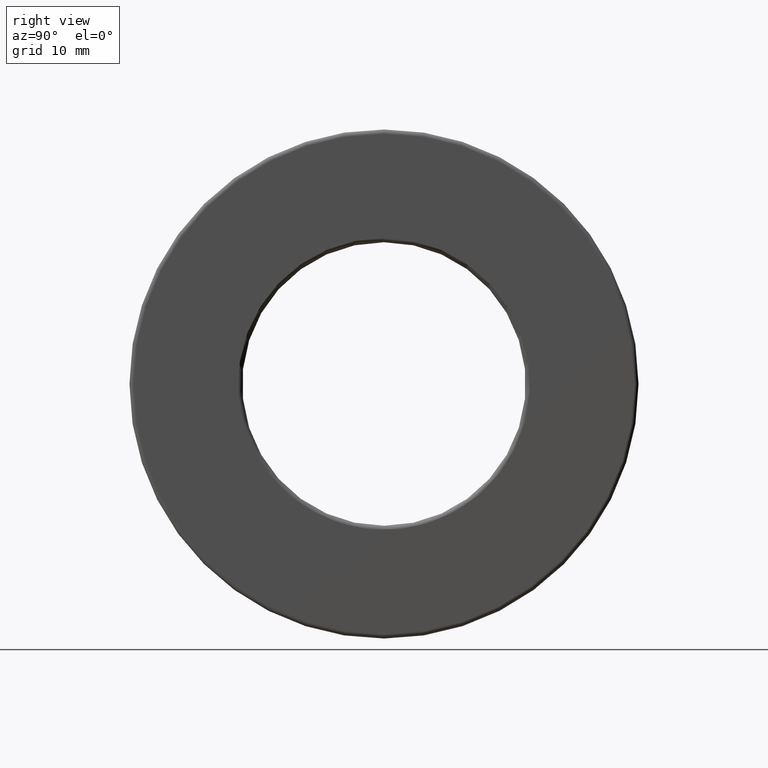
[diagram: clean part render]
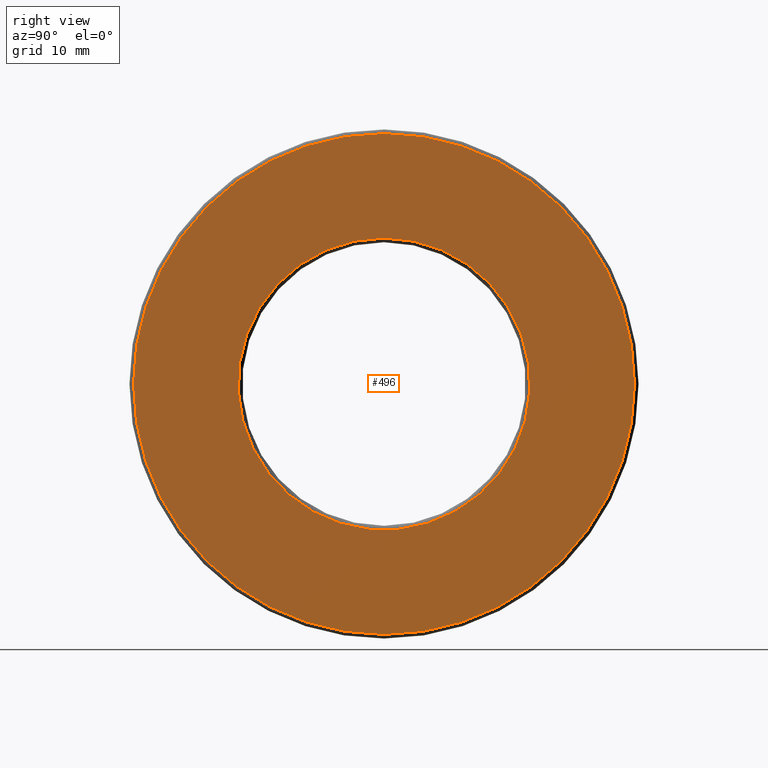
[diagram: same view with one face highlighted and labeled with its STEP entity id]
A machine part, right view. The second image highlights one B-rep face of the part: STEP entity #496.
In plain terms, the highlighted planar face has unit normal (1, 0, 0).
Its self-contained STEP definition (entity closure, byte-faithful):
#49 = FACE_OUTER_BOUND ( 'NONE', #256, .T. ) ;
#71 = CARTESIAN_POINT ( 'NONE',  ( 0.3125000000000000000, 0.0000000000000000000, 0.0000000000000000000 ) ) ;
#78 = ORIENTED_EDGE ( 'NONE', *, *, #1033, .T. ) ;
#98 = ORIENTED_EDGE ( 'NONE', *, *, #634, .F. ) ;
#184 = DIRECTION ( 'NONE',  ( 0.0000000000000000000, 0.0000000000000000000, 1.000000000000000000 ) ) ;
#256 = EDGE_LOOP ( 'NONE', ( #98 ) ) ;
#294 = DIRECTION ( 'NONE',  ( -1.000000000000000000, -0.0000000000000000000, -0.0000000000000000000 ) ) ;
#468 = EDGE_LOOP ( 'NONE', ( #78 ) ) ;
#496 = ADVANCED_FACE ( 'NONE', ( #1212, #49 ), #1068, .T. ) ;
#634 = EDGE_CURVE ( 'NONE', #1024, #1024, #1381, .T. ) ;
#671 = AXIS2_PLACEMENT_3D ( 'NONE', #71, #1195, #184 ) ;
#740 = CARTESIAN_POINT ( 'NONE',  ( 0.3125000000000000000, 0.0000000000000000000, 0.0000000000000000000 ) ) ;
#848 = AXIS2_PLACEMENT_3D ( 'NONE', #862, #294, #1291 ) ;
#858 = VERTEX_POINT ( 'NONE', #1460 ) ;
#862 = CARTESIAN_POINT ( 'NONE',  ( 0.3125000000000000000, 0.0000000000000000000, 0.0000000000000000000 ) ) ;
#899 = AXIS2_PLACEMENT_3D ( 'NONE', #740, #969, #963 ) ;
#963 = DIRECTION ( 'NONE',  ( 0.0000000000000000000, 0.0000000000000000000, -1.000000000000000000 ) ) ;
#969 = DIRECTION ( 'NONE',  ( 1.000000000000000000, 0.0000000000000000000, 0.0000000000000000000 ) ) ;
#1024 = VERTEX_POINT ( 'NONE', #1437 ) ;
#1033 = EDGE_CURVE ( 'NONE', #858, #858, #1148, .T. ) ;
#1068 = PLANE ( 'NONE',  #899 ) ;
#1148 = CIRCLE ( 'NONE', #848, 0.7074999999999999100 ) ;
#1195 = DIRECTION ( 'NONE',  ( -1.000000000000000000, -0.0000000000000000000, -0.0000000000000000000 ) ) ;
#1212 = FACE_BOUND ( 'NONE', #468, .T. ) ;
#1291 = DIRECTION ( 'NONE',  ( 0.0000000000000000000, 0.0000000000000000000, 1.000000000000000000 ) ) ;
#1381 = CIRCLE ( 'NONE', #671, 1.214375000000000200 ) ;
#1437 = CARTESIAN_POINT ( 'NONE',  ( 0.3125000000000000000, 0.0000000000000000000, 1.214375000000000200 ) ) ;
#1460 = CARTESIAN_POINT ( 'NONE',  ( 0.3125000000000000000, 0.0000000000000000000, 0.7074999999999999100 ) ) ;